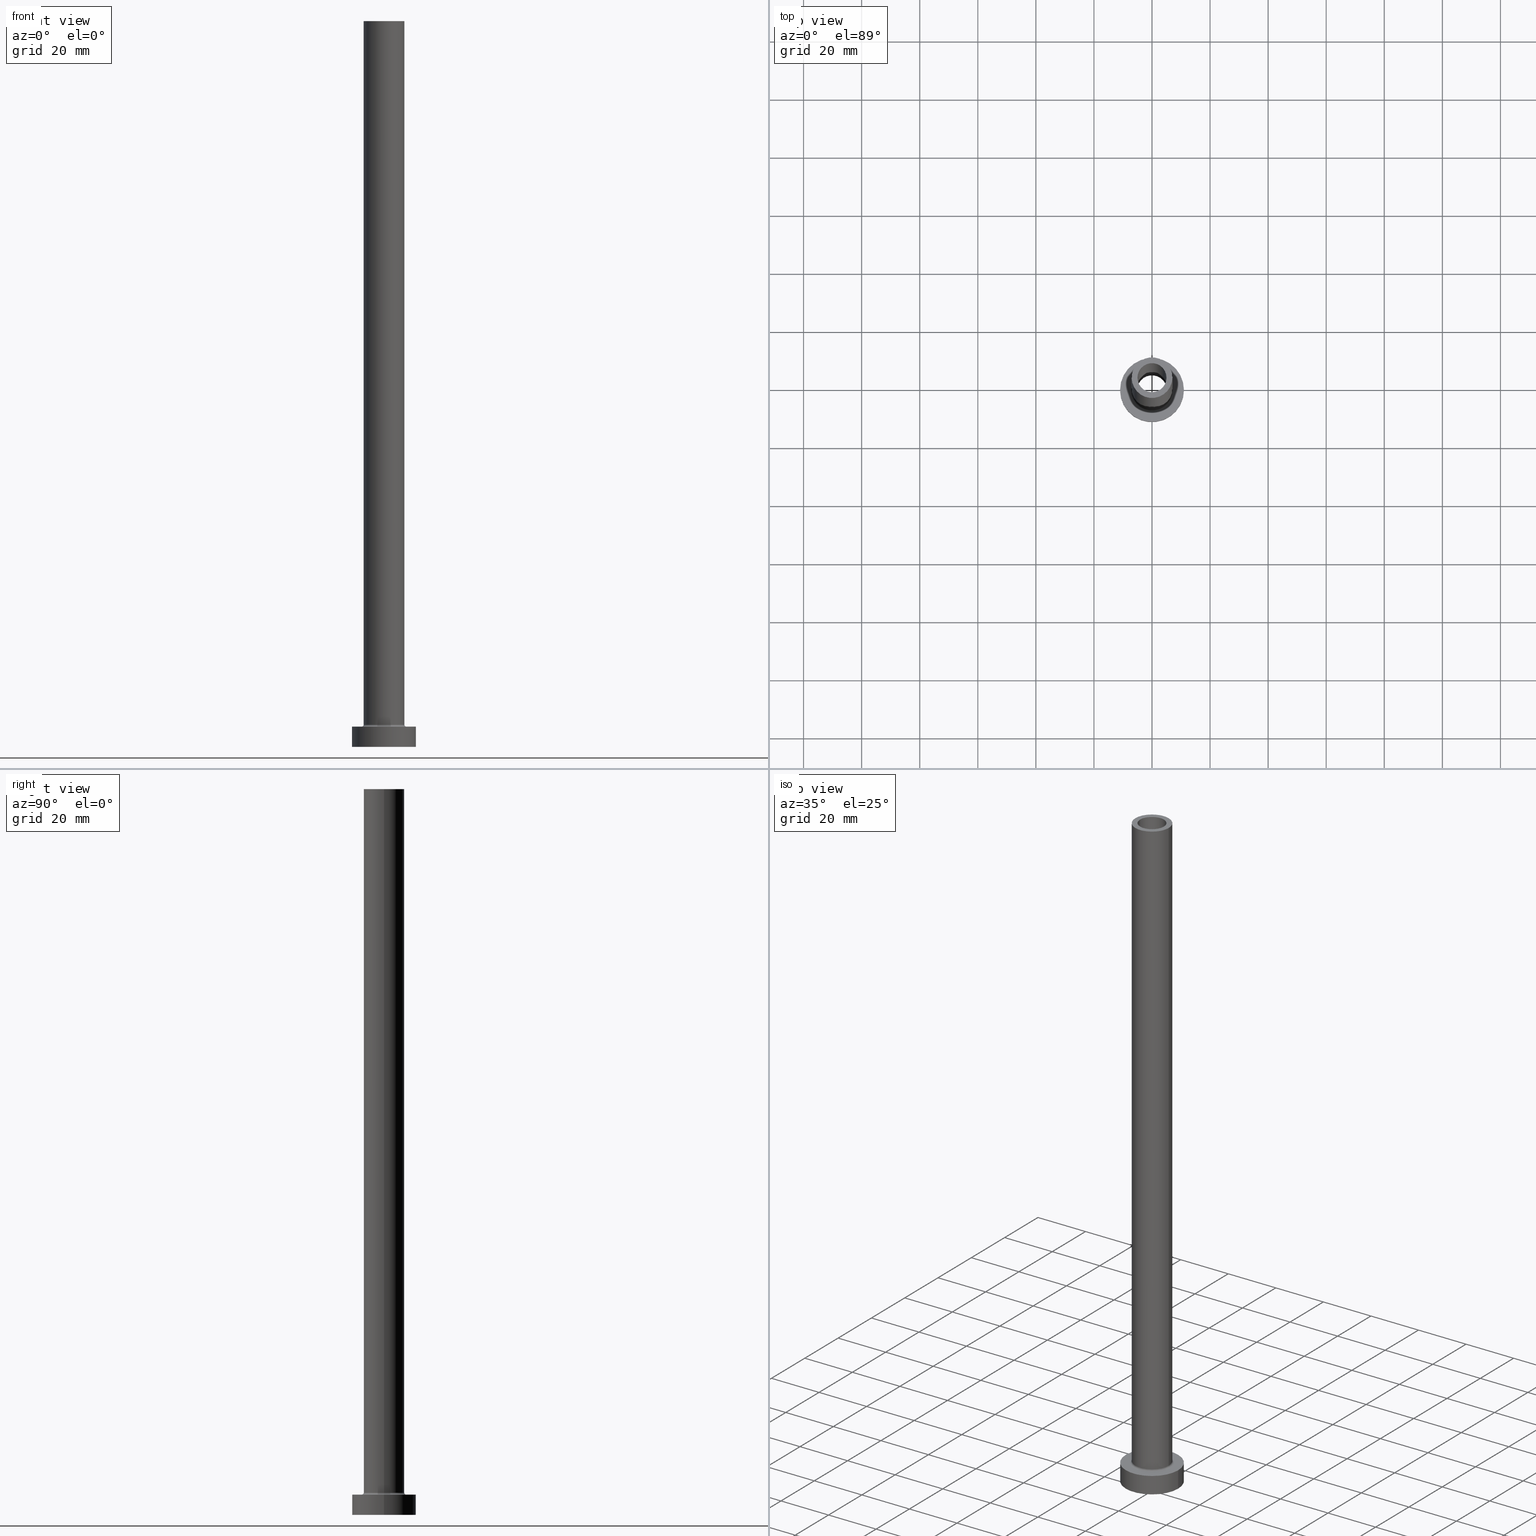
[diagram: canonical four-view strip — front | top / right | iso, engineering-drawing reading convention]
A machine part, canonical four-view strip (front | top / right | iso — engineering-drawing reading convention). The complete STEP part file that produces these views, byte-faithful:
ISO-10303-21;
HEADER;
FILE_DESCRIPTION (( 'STEP AP203' ),
    '1' );
FILE_NAME ('990e.STEP',
    '2023-02-13T07:43:22',
    ( '' ),
    ( '' ),
    'SwSTEP 2.0',
    'SolidWorks 2019',
    '' );
FILE_SCHEMA (( 'CONFIG_CONTROL_DESIGN' ));
ENDSEC;

DATA;
#1 = AXIS2_PLACEMENT_3D ( 'NONE', #248, #85, #370 ) ;
#2 = APPROVAL_DATE_TIME ( #71, #34 ) ;
#3 = DATE_TIME_ROLE ( 'creation_date' ) ;
#4 = ADVANCED_FACE ( 'NONE', ( #374 ), #129, .T. ) ;
#5 = CIRCLE ( 'NONE', #452, 5.150000000000001243 ) ;
#6 = ORIENTED_EDGE ( 'NONE', *, *, #339, .T. ) ;
#7 = CALENDAR_DATE ( 2023, 13, 2 ) ;
#8 = DIRECTION ( 'NONE',  ( 0.000000000000000000, 0.000000000000000000, -1.000000000000000000 ) ) ;
#9 = DIRECTION ( 'NONE',  ( 1.000000000000000000, 0.000000000000000000, 0.000000000000000000 ) ) ;
#10 = EDGE_LOOP ( 'NONE', ( #22, #79 ) ) ;
#11 = ADVANCED_FACE ( 'NONE', ( #300 ), #259, .F. ) ;
#12 = PERSON_AND_ORGANIZATION ( #36, #454 ) ;
#13 = DIRECTION ( 'NONE',  ( -0.000000000000000000, -0.000000000000000000, -1.000000000000000000 ) ) ;
#14 = VERTEX_POINT ( 'NONE', #95 ) ;
#15 = AXIS2_PLACEMENT_3D ( 'NONE', #57, #238, #377 ) ;
#16 = CALENDAR_DATE ( 2023, 13, 2 ) ;
#17 = DIRECTION ( 'NONE',  ( -1.000000000000000000, 0.000000000000000000, 0.000000000000000000 ) ) ;
#18 = DIRECTION ( 'NONE',  ( -0.000000000000000000, -0.000000000000000000, -1.000000000000000000 ) ) ;
#19 = ORIENTED_EDGE ( 'NONE', *, *, #342, .F. ) ;
#20 = DIRECTION ( 'NONE',  ( 0.000000000000000000, -1.000000000000000000, 0.000000000000000000 ) ) ;
#21 = CARTESIAN_POINT ( 'NONE',  ( 0.000000000000000000, 0.000000000000000000, 250.0000000000000000 ) ) ;
#22 = ORIENTED_EDGE ( 'NONE', *, *, #221, .F. ) ;
#23 = ORIENTED_EDGE ( 'NONE', *, *, #65, .T. ) ;
#24 = CARTESIAN_POINT ( 'NONE',  ( 0.000000000000000000, 0.000000000000000000, 7.700000000000012612 ) ) ;
#25 = CARTESIAN_POINT ( 'NONE',  ( -5.150000000000001243, 0.000000000000000000, 219.5663996924429000 ) ) ;
#26 = VERTEX_POINT ( 'NONE', #89 ) ;
#27 = ADVANCED_FACE ( 'NONE', ( #269, #368 ), #416, .T. ) ;
#28 = AXIS2_PLACEMENT_3D ( 'NONE', #143, #56, #17 ) ;
#29 = AXIS2_PLACEMENT_3D ( 'NONE', #234, #223, #273 ) ;
#30 = EDGE_CURVE ( 'NONE', #155, #153, #174, .T. ) ;
#31 = EDGE_LOOP ( 'NONE', ( #228, #169, #239, #417 ) ) ;
#32 = EDGE_CURVE ( 'NONE', #155, #26, #62, .T. ) ;
#33 = LOCAL_TIME ( 8, 43, 22.00000000000000000, #351 ) ;
#34 = APPROVAL ( #74, 'NEUR�EN�' ) ;
#35 = AXIS2_PLACEMENT_3D ( 'NONE', #126, #303, #60 ) ;
#36 = PERSON ( 'NEUR�EN�', 'NEUR�EN�', 'NEUR�EN�', ('NEUR�EN�'), ('NEUR�EN�'), ('NEUR�EN�') ) ;
#37 = COORDINATED_UNIVERSAL_TIME_OFFSET ( 1, 0, .AHEAD. ) ;
#38 = CARTESIAN_POINT ( 'NONE',  ( 0.000000000000000000, 0.000000000000000000, 205.0000000000000284 ) ) ;
#39 = APPROVAL_STATUS ( 'not_yet_approved' ) ;
#40 = EDGE_CURVE ( 'NONE', #153, #458, #455, .T. ) ;
#41 = DIRECTION ( 'NONE',  ( -1.000000000000000000, 0.000000000000000000, 0.000000000000000000 ) ) ;
#42 = ORIENTED_EDGE ( 'NONE', *, *, #272, .F. ) ;
#43 = PERSON_AND_ORGANIZATION ( #36, #454 ) ;
#44 = CIRCLE ( 'NONE', #308, 11.00000000000000000 ) ;
#45 = AXIS2_PLACEMENT_3D ( 'NONE', #292, #82, #398 ) ;
#46 = CARTESIAN_POINT ( 'NONE',  ( -5.000000000000000000, 0.000000000000000000, 250.0000000000000000 ) ) ;
#47 = DIRECTION ( 'NONE',  ( 1.000000000000000000, 0.000000000000000000, -0.000000000000000000 ) ) ;
#48 = EDGE_CURVE ( 'NONE', #458, #26, #5, .T. ) ;
#49 = DIRECTION ( 'NONE',  ( -0.000000000000000000, -0.000000000000000000, -1.000000000000000000 ) ) ;
#50 = DIRECTION ( 'NONE',  ( -1.000000000000000000, 1.224646799147351975E-16, 0.000000000000000000 ) ) ;
#51 = CARTESIAN_POINT ( 'NONE',  ( -5.000000000000000000, 0.000000000000000000, 250.0000000000000000 ) ) ;
#52 = DIRECTION ( 'NONE',  ( 1.000000000000000000, 0.000000000000000000, 0.000000000000000000 ) ) ;
#53 = DIRECTION ( 'NONE',  ( 0.000000000000000000, 0.000000000000000000, -1.000000000000000000 ) ) ;
#54 = ORIENTED_EDGE ( 'NONE', *, *, #383, .T. ) ;
#55 = APPROVAL_ROLE ( '' ) ;
#56 = DIRECTION ( 'NONE',  ( 0.000000000000000000, 0.000000000000000000, -1.000000000000000000 ) ) ;
#57 = CARTESIAN_POINT ( 'NONE',  ( 0.000000000000000000, 0.000000000000000000, 205.0000000000000284 ) ) ;
#58 = LINE ( 'NONE', #431, #104 ) ;
#59 = CARTESIAN_POINT ( 'NONE',  ( 5.000000000000000000, 6.123233995736765296E-16, 250.0000000000000000 ) ) ;
#60 = DIRECTION ( 'NONE',  ( 1.000000000000000000, 0.000000000000000000, 0.000000000000000000 ) ) ;
#61 = ORIENTED_EDGE ( 'NONE', *, *, #385, .T. ) ;
#62 = LINE ( 'NONE', #25, #131 ) ;
#63 = ADVANCED_FACE ( 'NONE', ( #345 ), #202, .F. ) ;
#64 = ORIENTED_EDGE ( 'NONE', *, *, #107, .T. ) ;
#65 = EDGE_CURVE ( 'NONE', #132, #92, #270, .T. ) ;
#66 = VERTEX_POINT ( 'NONE', #189 ) ;
#67 = AXIS2_PLACEMENT_3D ( 'NONE', #209, #257, #262 ) ;
#68 = EDGE_CURVE ( 'NONE', #226, #335, #277, .T. ) ;
#69 = VECTOR ( 'NONE', #268, 1000.000000000000000 ) ;
#70 = CIRCLE ( 'NONE', #139, 7.700000000000001066 ) ;
#71 = DATE_AND_TIME ( #423, #433 ) ;
#72 = APPROVAL_PERSON_ORGANIZATION ( #43, #319, #426 ) ;
#73 = AXIS2_PLACEMENT_3D ( 'NONE', #116, #252, #287 ) ;
#74 = APPROVAL_STATUS ( 'not_yet_approved' ) ;
#75 = DIRECTION ( 'NONE',  ( 0.000000000000000000, 0.000000000000000000, 1.000000000000000000 ) ) ;
#76 = FACE_OUTER_BOUND ( 'NONE', #10, .T. ) ;
#77 = PERSON_AND_ORGANIZATION_ROLE ( 'classification_officer' ) ;
#78 = PLANE ( 'NONE',  #67 ) ;
#79 = ORIENTED_EDGE ( 'NONE', *, *, #385, .F. ) ;
#80 = AXIS2_PLACEMENT_3D ( 'NONE', #387, #75, #205 ) ;
#81 = APPROVAL_PERSON_ORGANIZATION ( #12, #105, #55 ) ;
#82 = DIRECTION ( 'NONE',  ( 0.000000000000000000, 0.000000000000000000, 1.000000000000000000 ) ) ;
#83 =( LENGTH_UNIT ( ) NAMED_UNIT ( * ) SI_UNIT ( .MILLI., .METRE. ) );
#84 = CARTESIAN_POINT ( 'NONE',  ( 5.000000000000000000, 6.123233995736765296E-16, 250.0000000000000000 ) ) ;
#85 = DIRECTION ( 'NONE',  ( -0.000000000000000000, -0.000000000000000000, -1.000000000000000000 ) ) ;
#86 = DIRECTION ( 'NONE',  ( 1.224646799147353207E-16, 1.000000000000000000, -0.000000000000000000 ) ) ;
#87 = ORIENTED_EDGE ( 'NONE', *, *, #383, .F. ) ;
#88 =( NAMED_UNIT ( * ) SI_UNIT ( $, .STERADIAN. ) SOLID_ANGLE_UNIT ( ) );
#89 = CARTESIAN_POINT ( 'NONE',  ( -5.150000000000001243, 0.000000000000000000, 0.000000000000000000 ) ) ;
#90 = ORIENTED_EDGE ( 'NONE', *, *, #309, .T. ) ;
#91 = LINE ( 'NONE', #46, #384 ) ;
#92 = VERTEX_POINT ( 'NONE', #261 ) ;
#93 = DIRECTION ( 'NONE',  ( -1.000000000000000000, 0.000000000000000000, 0.000000000000000000 ) ) ;
#94 = CYLINDRICAL_SURFACE ( 'NONE', #28, 5.000000000000000000 ) ;
#95 = CARTESIAN_POINT ( 'NONE',  ( -5.000000000000000000, 0.000000000000000000, 205.0000000000000284 ) ) ;
#96 = ORIENTED_EDGE ( 'NONE', *, *, #185, .T. ) ;
#97 = AXIS2_PLACEMENT_3D ( 'NONE', #393, #328, #9 ) ;
#98 = ADVANCED_FACE ( 'NONE', ( #286 ), #330, .T. ) ;
#99 = ORIENTED_EDGE ( 'NONE', *, *, #221, .T. ) ;
#100 = EDGE_LOOP ( 'NONE', ( #334, #101, #233, #275 ) ) ;
#101 = ORIENTED_EDGE ( 'NONE', *, *, #65, .F. ) ;
#102 = CC_DESIGN_APPROVAL ( #34, ( #310 ) ) ;
#103 = ADVANCED_BREP_SHAPE_REPRESENTATION ( '990e', ( #325, #29 ), #413 ) ;
#104 = VECTOR ( 'NONE', #266, 1000.000000000000000 ) ;
#105 = APPROVAL ( #258, 'NEUR�EN�' ) ;
#106 = VECTOR ( 'NONE', #125, 1000.000000000000000 ) ;
#107 = EDGE_CURVE ( 'NONE', #236, #335, #242, .T. ) ;
#108 = APPROVAL_PERSON_ORGANIZATION ( #281, #34, #113 ) ;
#109 = DIRECTION ( 'NONE',  ( 0.000000000000000000, 0.000000000000000000, 1.000000000000000000 ) ) ;
#110 = CC_DESIGN_PERSON_AND_ORGANIZATION_ASSIGNMENT ( #366, #399, ( #199 ) ) ;
#111 = AXIS2_PLACEMENT_3D ( 'NONE', #436, #291, #396 ) ;
#112 = FACE_OUTER_BOUND ( 'NONE', #444, .T. ) ;
#113 = APPROVAL_ROLE ( '' ) ;
#114 = CARTESIAN_POINT ( 'NONE',  ( -11.00000000000000000, 0.000000000000000000, 7.000000000000000000 ) ) ;
#115 = DIRECTION ( 'NONE',  ( 0.000000000000000000, 0.000000000000000000, -1.000000000000000000 ) ) ;
#116 = CARTESIAN_POINT ( 'NONE',  ( 0.000000000000000000, 0.000000000000000000, 0.000000000000000000 ) ) ;
#117 = CARTESIAN_POINT ( 'NONE',  ( 11.00000000000000000, 1.347111479062088405E-15, 0.000000000000000000 ) ) ;
#118 = AXIS2_PLACEMENT_3D ( 'NONE', #298, #442, #122 ) ;
#119 = DIRECTION ( 'NONE',  ( 0.000000000000000000, 0.000000000000000000, -1.000000000000000000 ) ) ;
#120 = ORIENTED_EDGE ( 'NONE', *, *, #305, .F. ) ;
#121 = FACE_OUTER_BOUND ( 'NONE', #31, .T. ) ;
#122 = DIRECTION ( 'NONE',  ( -1.000000000000000000, 0.000000000000000000, 0.000000000000000000 ) ) ;
#123 = ORIENTED_EDGE ( 'NONE', *, *, #430, .F. ) ;
#124 = DIRECTION ( 'NONE',  ( 1.000000000000000000, 0.000000000000000000, 0.000000000000000000 ) ) ;
#125 = DIRECTION ( 'NONE',  ( -0.000000000000000000, -0.000000000000000000, -1.000000000000000000 ) ) ;
#126 = CARTESIAN_POINT ( 'NONE',  ( 0.000000000000000000, 0.000000000000000000, 7.700000000000012612 ) ) ;
#127 = EDGE_CURVE ( 'NONE', #92, #226, #212, .T. ) ;
#128 = CARTESIAN_POINT ( 'NONE',  ( 0.000000000000000000, 0.000000000000000000, 7.000000000000000000 ) ) ;
#129 = CYLINDRICAL_SURFACE ( 'NONE', #118, 7.000000000000000888 ) ;
#130 = AXIS2_PLACEMENT_3D ( 'NONE', #21, #193, #306 ) ;
#131 = VECTOR ( 'NONE', #307, 1000.000000000000000 ) ;
#132 = VERTEX_POINT ( 'NONE', #359 ) ;
#133 = AXIS2_PLACEMENT_3D ( 'NONE', #24, #152, #409 ) ;
#134 = DIRECTION ( 'NONE',  ( 0.000000000000000000, 0.000000000000000000, -1.000000000000000000 ) ) ;
#135 = ORIENTED_EDGE ( 'NONE', *, *, #314, .T. ) ;
#136 = ADVANCED_FACE ( 'NONE', ( #294 ), #419, .F. ) ;
#137 = ORIENTED_EDGE ( 'NONE', *, *, #127, .T. ) ;
#138 = CC_DESIGN_APPROVAL ( #319, ( #229 ) ) ;
#139 = AXIS2_PLACEMENT_3D ( 'NONE', #128, #222, #52 ) ;
#140 = EDGE_CURVE ( 'NONE', #335, #236, #70, .T. ) ;
#141 = EDGE_CURVE ( 'NONE', #162, #260, #58, .T. ) ;
#142 = AXIS2_PLACEMENT_3D ( 'NONE', #352, #318, #216 ) ;
#143 = CARTESIAN_POINT ( 'NONE',  ( 0.000000000000000000, 0.000000000000000000, 250.0000000000000000 ) ) ;
#144 = CC_DESIGN_PERSON_AND_ORGANIZATION_ASSIGNMENT ( #207, #391, ( #278 ) ) ;
#145 = PERSON_AND_ORGANIZATION_ROLE ( 'creator' ) ;
#146 = CIRCLE ( 'NONE', #217, 5.000000000000000000 ) ;
#147 = CIRCLE ( 'NONE', #73, 5.150000000000001243 ) ;
#148 = FACE_OUTER_BOUND ( 'NONE', #265, .T. ) ;
#149 = DATE_AND_TIME ( #356, #418 ) ;
#150 = CARTESIAN_POINT ( 'NONE',  ( 7.700000000000001066, 0.000000000000000000, 7.700000000000012612 ) ) ;
#151 = CARTESIAN_POINT ( 'NONE',  ( 0.000000000000000000, 0.000000000000000000, 219.5663996924429000 ) ) ;
#152 = DIRECTION ( 'NONE',  ( 0.000000000000000000, 0.000000000000000000, 1.000000000000000000 ) ) ;
#153 = VERTEX_POINT ( 'NONE', #290 ) ;
#154 = VECTOR ( 'NONE', #49, 1000.000000000000000 ) ;
#155 = VERTEX_POINT ( 'NONE', #427 ) ;
#156 = CARTESIAN_POINT ( 'NONE',  ( 0.000000000000000000, 0.000000000000000000, 7.000000000000000000 ) ) ;
#157 = ORIENTED_EDGE ( 'NONE', *, *, #339, .F. ) ;
#158 = DIRECTION ( 'NONE',  ( -0.000000000000000000, -0.000000000000000000, -1.000000000000000000 ) ) ;
#159 = CARTESIAN_POINT ( 'NONE',  ( 0.000000000000000000, 0.000000000000000000, 7.000000000000000000 ) ) ;
#160 = PRODUCT_RELATED_PRODUCT_CATEGORY ( 'detail', '', ( #199 ) ) ;
#161 = EDGE_LOOP ( 'NONE', ( #412, #135 ) ) ;
#162 = VERTEX_POINT ( 'NONE', #114 ) ;
#163 = CARTESIAN_POINT ( 'NONE',  ( -7.000000000000000888, 0.000000000000000000, 250.0000000000000000 ) ) ;
#164 = DIRECTION ( 'NONE',  ( 1.000000000000000000, 0.000000000000000000, -0.000000000000000000 ) ) ;
#165 = VECTOR ( 'NONE', #134, 1000.000000000000000 ) ;
#166 = EDGE_LOOP ( 'NONE', ( #246, #348, #195, #378 ) ) ;
#167 = AXIS2_PLACEMENT_3D ( 'NONE', #156, #341, #371 ) ;
#168 = DIRECTION ( 'NONE',  ( 0.000000000000000000, 0.000000000000000000, 1.000000000000000000 ) ) ;
#169 = ORIENTED_EDGE ( 'NONE', *, *, #421, .T. ) ;
#170 = ADVANCED_FACE ( 'NONE', ( #181 ), #333, .T. ) ;
#171 = APPROVAL_DATE_TIME ( #386, #319 ) ;
#172 = CARTESIAN_POINT ( 'NONE',  ( -7.700000000000001066, 9.429780353434621002E-16, 7.000000000000006217 ) ) ;
#173 = EDGE_LOOP ( 'NONE', ( #157, #137, #451, #375 ) ) ;
#174 = CIRCLE ( 'NONE', #15, 5.150000000000001243 ) ;
#175 = COORDINATED_UNIVERSAL_TIME_OFFSET ( 1, 0, .AHEAD. ) ;
#176 = EDGE_CURVE ( 'NONE', #312, #14, #91, .T. ) ;
#177 = DIRECTION ( 'NONE',  ( 0.000000000000000000, 0.000000000000000000, 1.000000000000000000 ) ) ;
#178 = CYLINDRICAL_SURFACE ( 'NONE', #321, 11.00000000000000000 ) ;
#179 = CARTESIAN_POINT ( 'NONE',  ( 0.000000000000000000, 0.000000000000000000, 205.0000000000000284 ) ) ;
#180 = FACE_OUTER_BOUND ( 'NONE', #332, .T. ) ;
#181 = FACE_OUTER_BOUND ( 'NONE', #198, .T. ) ;
#182 = LINE ( 'NONE', #84, #324 ) ;
#183 = EDGE_LOOP ( 'NONE', ( #457, #87, #340, #99 ) ) ;
#184 = CC_DESIGN_SECURITY_CLASSIFICATION ( #229, ( #310 ) ) ;
#185 = EDGE_CURVE ( 'NONE', #26, #458, #147, .T. ) ;
#186 = LINE ( 'NONE', #446, #106 ) ;
#187 = DIRECTION ( 'NONE',  ( 0.000000000000000000, 0.000000000000000000, -1.000000000000000000 ) ) ;
#188 = AXIS2_PLACEMENT_3D ( 'NONE', #392, #158, #449 ) ;
#189 = CARTESIAN_POINT ( 'NONE',  ( -7.000000000000000888, 0.000000000000000000, 7.700000000000012612 ) ) ;
#190 = CC_DESIGN_DATE_AND_TIME_ASSIGNMENT ( #149, #289, ( #229 ) ) ;
#191 = FACE_BOUND ( 'NONE', #311, .T. ) ;
#192 = VERTEX_POINT ( 'NONE', #117 ) ;
#193 = DIRECTION ( 'NONE',  ( 0.000000000000000000, 0.000000000000000000, 1.000000000000000000 ) ) ;
#194 = CARTESIAN_POINT ( 'NONE',  ( 0.000000000000000000, 0.000000000000000000, 250.0000000000000000 ) ) ;
#195 = ORIENTED_EDGE ( 'NONE', *, *, #48, .T. ) ;
#196 = CARTESIAN_POINT ( 'NONE',  ( 0.000000000000000000, 0.000000000000000000, 250.0000000000000000 ) ) ;
#197 = CIRCLE ( 'NONE', #45, 11.00000000000000000 ) ;
#198 = EDGE_LOOP ( 'NONE', ( #19, #397, #61, #450 ) ) ;
#199 = PRODUCT ( '990e', '990e', '', ( #439 ) ) ;
#200 = ADVANCED_FACE ( 'NONE', ( #402, #76 ), #78, .F. ) ;
#201 = CIRCLE ( 'NONE', #133, 7.000000000000000888 ) ;
#202 = TOROIDAL_SURFACE ( 'NONE', #35, 7.700000000000001066, 0.6999999999999999556 ) ;
#203 = ADVANCED_FACE ( 'NONE', ( #249 ), #283, .F. ) ;
#204 = SHAPE_DEFINITION_REPRESENTATION ( #382, #103 ) ;
#205 = DIRECTION ( 'NONE',  ( 1.000000000000000000, 0.000000000000000000, 0.000000000000000000 ) ) ;
#206 = AXIS2_PLACEMENT_3D ( 'NONE', #407, #435, #360 ) ;
#207 = PERSON_AND_ORGANIZATION ( #36, #454 ) ;
#208 = PERSON_AND_ORGANIZATION ( #36, #454 ) ;
#209 = CARTESIAN_POINT ( 'NONE',  ( 0.000000000000000000, 0.000000000000000000, 0.000000000000000000 ) ) ;
#210 = EDGE_CURVE ( 'NONE', #66, #236, #372, .T. ) ;
#211 = CALENDAR_DATE ( 2023, 13, 2 ) ;
#212 = LINE ( 'NONE', #363, #154 ) ;
#213 = CYLINDRICAL_SURFACE ( 'NONE', #240, 5.150000000000001243 ) ;
#214 = ADVANCED_FACE ( 'NONE', ( #112 ), #213, .F. ) ;
#215 = CIRCLE ( 'NONE', #323, 7.000000000000000888 ) ;
#216 = DIRECTION ( 'NONE',  ( 1.000000000000000000, 0.000000000000000000, 0.000000000000000000 ) ) ;
#217 = AXIS2_PLACEMENT_3D ( 'NONE', #453, #264, #124 ) ;
#218 = CARTESIAN_POINT ( 'NONE',  ( -11.00000000000000000, 0.000000000000000000, 0.000000000000000000 ) ) ;
#219 = FACE_OUTER_BOUND ( 'NONE', #183, .T. ) ;
#220 = DIRECTION ( 'NONE',  ( 0.000000000000000000, 0.000000000000000000, -1.000000000000000000 ) ) ;
#221 = EDGE_CURVE ( 'NONE', #260, #192, #297, .T. ) ;
#222 = DIRECTION ( 'NONE',  ( -0.000000000000000000, -0.000000000000000000, -1.000000000000000000 ) ) ;
#223 = DIRECTION ( 'NONE',  ( 0.000000000000000000, 0.000000000000000000, 1.000000000000000000 ) ) ;
#224 = CARTESIAN_POINT ( 'NONE',  ( 0.000000000000000000, 0.000000000000000000, 250.0000000000000000 ) ) ;
#225 = ORIENTED_EDGE ( 'NONE', *, *, #140, .F. ) ;
#226 = VERTEX_POINT ( 'NONE', #357 ) ;
#227 = CARTESIAN_POINT ( 'NONE',  ( 0.000000000000000000, 0.000000000000000000, 7.000000000000000000 ) ) ;
#228 = ORIENTED_EDGE ( 'NONE', *, *, #309, .F. ) ;
#229 = SECURITY_CLASSIFICATION ( '', '', #320 ) ;
#230 = PLANE ( 'NONE',  #167 ) ;
#231 = ORIENTED_EDGE ( 'NONE', *, *, #140, .T. ) ;
#232 = AXIS2_PLACEMENT_3D ( 'NONE', #196, #168, #164 ) ;
#233 = ORIENTED_EDGE ( 'NONE', *, *, #420, .T. ) ;
#234 = CARTESIAN_POINT ( 'NONE',  ( 0.000000000000000000, 0.000000000000000000, 0.000000000000000000 ) ) ;
#235 = DIRECTION ( 'NONE',  ( -1.000000000000000000, 0.000000000000000000, 0.000000000000000000 ) ) ;
#236 = VERTEX_POINT ( 'NONE', #172 ) ;
#237 = APPLICATION_CONTEXT ( 'configuration controlled 3d designs of mechanical parts and assemblies' ) ;
#238 = DIRECTION ( 'NONE',  ( 0.000000000000000000, 0.000000000000000000, 1.000000000000000000 ) ) ;
#239 = ORIENTED_EDGE ( 'NONE', *, *, #176, .T. ) ;
#240 = AXIS2_PLACEMENT_3D ( 'NONE', #361, #115, #41 ) ;
#241 = CC_DESIGN_PERSON_AND_ORGANIZATION_ASSIGNMENT ( #282, #390, ( #310 ) ) ;
#242 = CIRCLE ( 'NONE', #188, 7.700000000000001066 ) ;
#243 = LOCAL_TIME ( 8, 43, 22.00000000000000000, #175 ) ;
#244 = CIRCLE ( 'NONE', #97, 5.000000000000000000 ) ;
#245 = DIRECTION ( 'NONE',  ( 0.000000000000000000, 0.000000000000000000, 1.000000000000000000 ) ) ;
#246 = ORIENTED_EDGE ( 'NONE', *, *, #30, .T. ) ;
#247 = ADVANCED_FACE ( 'NONE', ( #322, #148 ), #432, .F. ) ;
#248 = CARTESIAN_POINT ( 'NONE',  ( 0.000000000000000000, 0.000000000000000000, 250.0000000000000000 ) ) ;
#249 = FACE_OUTER_BOUND ( 'NONE', #166, .T. ) ;
#250 = ORIENTED_EDGE ( 'NONE', *, *, #210, .T. ) ;
#251 = APPLICATION_CONTEXT ( 'configuration controlled 3d designs of mechanical parts and assemblies' ) ;
#252 = DIRECTION ( 'NONE',  ( -0.000000000000000000, -0.000000000000000000, -1.000000000000000000 ) ) ;
#253 = DIRECTION ( 'NONE',  ( 1.000000000000000000, 0.000000000000000000, 0.000000000000000000 ) ) ;
#254 = ORIENTED_EDGE ( 'NONE', *, *, #48, .F. ) ;
#255 = AXIS2_PLACEMENT_3D ( 'NONE', #150, #20, #119 ) ;
#256 = DIRECTION ( 'NONE',  ( 0.000000000000000000, 0.000000000000000000, 1.000000000000000000 ) ) ;
#257 = DIRECTION ( 'NONE',  ( 0.000000000000000000, 0.000000000000000000, 1.000000000000000000 ) ) ;
#258 = APPROVAL_STATUS ( 'not_yet_approved' ) ;
#259 = CYLINDRICAL_SURFACE ( 'NONE', #424, 5.000000000000000000 ) ;
#260 = VERTEX_POINT ( 'NONE', #218 ) ;
#261 = CARTESIAN_POINT ( 'NONE',  ( 7.000000000000000888, 8.572527594031474176E-16, 250.0000000000000000 ) ) ;
#262 = DIRECTION ( 'NONE',  ( 1.000000000000000000, 0.000000000000000000, -0.000000000000000000 ) ) ;
#263 = VERTEX_POINT ( 'NONE', #364 ) ;
#264 = DIRECTION ( 'NONE',  ( 0.000000000000000000, 0.000000000000000000, 1.000000000000000000 ) ) ;
#265 = EDGE_LOOP ( 'NONE', ( #410, #120 ) ) ;
#266 = DIRECTION ( 'NONE',  ( -0.000000000000000000, -0.000000000000000000, -1.000000000000000000 ) ) ;
#267 = CIRCLE ( 'NONE', #130, 5.000000000000000000 ) ;
#268 = DIRECTION ( 'NONE',  ( -0.000000000000000000, -0.000000000000000000, -1.000000000000000000 ) ) ;
#269 = FACE_BOUND ( 'NONE', #408, .T. ) ;
#270 = CIRCLE ( 'NONE', #317, 7.000000000000000888 ) ;
#271 = VERTEX_POINT ( 'NONE', #428 ) ;
#272 = EDGE_CURVE ( 'NONE', #14, #271, #244, .T. ) ;
#273 = DIRECTION ( 'NONE',  ( 1.000000000000000000, 0.000000000000000000, 0.000000000000000000 ) ) ;
#274 = CARTESIAN_POINT ( 'NONE',  ( 0.000000000000000000, 0.000000000000000000, 0.000000000000000000 ) ) ;
#275 = ORIENTED_EDGE ( 'NONE', *, *, #430, .T. ) ;
#276 = UNCERTAINTY_MEASURE_WITH_UNIT (LENGTH_MEASURE( 1.000000000000000082E-05 ), #83, 'distance_accuracy_value', 'NONE');
#277 = CIRCLE ( 'NONE', #255, 0.7000000000000000666 ) ;
#278 = PRODUCT_DEFINITION ( 'NEZN�M�', '', #310, #459 ) ;
#279 = CIRCLE ( 'NONE', #80, 7.000000000000000888 ) ;
#280 = LOCAL_TIME ( 8, 43, 22.00000000000000000, #403 ) ;
#281 = PERSON_AND_ORGANIZATION ( #36, #454 ) ;
#282 = PERSON_AND_ORGANIZATION ( #36, #454 ) ;
#283 = CYLINDRICAL_SURFACE ( 'NONE', #460, 5.150000000000001243 ) ;
#284 = CIRCLE ( 'NONE', #349, 5.000000000000000000 ) ;
#285 = APPROVAL_DATE_TIME ( #445, #105 ) ;
#286 = FACE_OUTER_BOUND ( 'NONE', #100, .T. ) ;
#287 = DIRECTION ( 'NONE',  ( 1.000000000000000000, 0.000000000000000000, 0.000000000000000000 ) ) ;
#288 = ORIENTED_EDGE ( 'NONE', *, *, #68, .F. ) ;
#289 = DATE_TIME_ROLE ( 'classification_date' ) ;
#290 = CARTESIAN_POINT ( 'NONE',  ( 5.150000000000001243, 6.306931015608869596E-16, 205.0000000000000284 ) ) ;
#291 = DIRECTION ( 'NONE',  ( 0.000000000000000000, 0.000000000000000000, 1.000000000000000000 ) ) ;
#292 = CARTESIAN_POINT ( 'NONE',  ( 0.000000000000000000, 0.000000000000000000, 0.000000000000000000 ) ) ;
#293 = APPLICATION_PROTOCOL_DEFINITION ( 'international standard', 'config_control_design', 1994, #237 ) ;
#294 = FACE_OUTER_BOUND ( 'NONE', #415, .T. ) ;
#295 = CARTESIAN_POINT ( 'NONE',  ( 0.000000000000000000, 0.000000000000000000, 0.000000000000000000 ) ) ;
#296 = ORIENTED_EDGE ( 'NONE', *, *, #405, .T. ) ;
#297 = CIRCLE ( 'NONE', #353, 11.00000000000000000 ) ;
#298 = CARTESIAN_POINT ( 'NONE',  ( 0.000000000000000000, 0.000000000000000000, 250.0000000000000000 ) ) ;
#299 = ORIENTED_EDGE ( 'NONE', *, *, #354, .F. ) ;
#300 = FACE_OUTER_BOUND ( 'NONE', #437, .T. ) ;
#301 = EDGE_LOOP ( 'NONE', ( #23, #6 ) ) ;
#302 =( NAMED_UNIT ( * ) PLANE_ANGLE_UNIT ( ) SI_UNIT ( $, .RADIAN. ) );
#303 = DIRECTION ( 'NONE',  ( 0.000000000000000000, 0.000000000000000000, 1.000000000000000000 ) ) ;
#304 = ORIENTED_EDGE ( 'NONE', *, *, #342, .T. ) ;
#305 = EDGE_CURVE ( 'NONE', #153, #155, #315, .T. ) ;
#306 = DIRECTION ( 'NONE',  ( 1.000000000000000000, 0.000000000000000000, 0.000000000000000000 ) ) ;
#307 = DIRECTION ( 'NONE',  ( 0.000000000000000000, 0.000000000000000000, -1.000000000000000000 ) ) ;
#308 = AXIS2_PLACEMENT_3D ( 'NONE', #373, #109, #367 ) ;
#309 = EDGE_CURVE ( 'NONE', #448, #271, #182, .T. ) ;
#310 = PRODUCT_DEFINITION_FORMATION_WITH_SPECIFIED_SOURCE ( 'LIBOVOLN�', '', #199, .NOT_KNOWN. ) ;
#311 = EDGE_LOOP ( 'NONE', ( #231, #64 ) ) ;
#312 = VERTEX_POINT ( 'NONE', #51 ) ;
#313 = ORIENTED_EDGE ( 'NONE', *, *, #40, .F. ) ;
#314 = EDGE_CURVE ( 'NONE', #271, #14, #284, .T. ) ;
#315 = CIRCLE ( 'NONE', #111, 5.150000000000001243 ) ;
#316 = ADVANCED_FACE ( 'NONE', ( #121 ), #94, .F. ) ;
#317 = AXIS2_PLACEMENT_3D ( 'NONE', #447, #336, #401 ) ;
#318 = DIRECTION ( 'NONE',  ( 0.000000000000000000, 0.000000000000000000, 1.000000000000000000 ) ) ;
#319 = APPROVAL ( #39, 'NEUR�EN�' ) ;
#320 = SECURITY_CLASSIFICATION_LEVEL ( 'unclassified' ) ;
#321 = AXIS2_PLACEMENT_3D ( 'NONE', #159, #376, #93 ) ;
#322 = FACE_BOUND ( 'NONE', #161, .T. ) ;
#323 = AXIS2_PLACEMENT_3D ( 'NONE', #224, #400, #434 ) ;
#324 = VECTOR ( 'NONE', #220, 1000.000000000000000 ) ;
#325 = MANIFOLD_SOLID_BREP ( 'Odebrat vysunut�m4', #422 ) ;
#326 = DATE_AND_TIME ( #211, #243 ) ;
#327 = DIRECTION ( 'NONE',  ( -1.000000000000000000, 0.000000000000000000, 0.000000000000000000 ) ) ;
#328 = DIRECTION ( 'NONE',  ( 0.000000000000000000, 0.000000000000000000, 1.000000000000000000 ) ) ;
#329 = CARTESIAN_POINT ( 'NONE',  ( 7.700000000000001066, 0.000000000000000000, 7.000000000000006217 ) ) ;
#330 = CYLINDRICAL_SURFACE ( 'NONE', #1, 7.000000000000000888 ) ;
#331 = DIRECTION ( 'NONE',  ( -1.000000000000000000, 0.000000000000000000, 0.000000000000000000 ) ) ;
#332 = EDGE_LOOP ( 'NONE', ( #54, #304 ) ) ;
#333 = CYLINDRICAL_SURFACE ( 'NONE', #438, 11.00000000000000000 ) ;
#334 = ORIENTED_EDGE ( 'NONE', *, *, #127, .F. ) ;
#335 = VERTEX_POINT ( 'NONE', #329 ) ;
#336 = DIRECTION ( 'NONE',  ( 0.000000000000000000, 0.000000000000000000, 1.000000000000000000 ) ) ;
#337 = CARTESIAN_POINT ( 'NONE',  ( 5.150000000000001243, 6.306931015608869596E-16, 0.000000000000000000 ) ) ;
#338 = CARTESIAN_POINT ( 'NONE',  ( 5.150000000000001243, 6.306931015608869596E-16, 219.5663996924429000 ) ) ;
#339 = EDGE_CURVE ( 'NONE', #92, #132, #215, .T. ) ;
#340 = ORIENTED_EDGE ( 'NONE', *, *, #141, .T. ) ;
#341 = DIRECTION ( 'NONE',  ( 0.000000000000000000, 0.000000000000000000, 1.000000000000000000 ) ) ;
#342 = EDGE_CURVE ( 'NONE', #263, #162, #44, .T. ) ;
#343 = EDGE_LOOP ( 'NONE', ( #123, #250, #225, #288 ) ) ;
#344 = ORIENTED_EDGE ( 'NONE', *, *, #421, .F. ) ;
#345 = FACE_OUTER_BOUND ( 'NONE', #343, .T. ) ;
#346 = CIRCLE ( 'NONE', #142, 11.00000000000000000 ) ;
#347 = CC_DESIGN_APPROVAL ( #105, ( #278 ) ) ;
#348 = ORIENTED_EDGE ( 'NONE', *, *, #40, .T. ) ;
#349 = AXIS2_PLACEMENT_3D ( 'NONE', #38, #256, #440 ) ;
#350 = EDGE_CURVE ( 'NONE', #263, #192, #186, .T. ) ;
#351 = COORDINATED_UNIVERSAL_TIME_OFFSET ( 1, 0, .AHEAD. ) ;
#352 = CARTESIAN_POINT ( 'NONE',  ( 0.000000000000000000, 0.000000000000000000, 7.000000000000000000 ) ) ;
#353 = AXIS2_PLACEMENT_3D ( 'NONE', #295, #245, #253 ) ;
#354 = EDGE_CURVE ( 'NONE', #226, #66, #279, .T. ) ;
#355 = COORDINATED_UNIVERSAL_TIME_OFFSET ( 1, 0, .AHEAD. ) ;
#356 = CALENDAR_DATE ( 2023, 13, 2 ) ;
#357 = CARTESIAN_POINT ( 'NONE',  ( 7.000000000000000888, 8.572527594031474176E-16, 7.700000000000012612 ) ) ;
#358 = PERSON_AND_ORGANIZATION ( #36, #454 ) ;
#359 = CARTESIAN_POINT ( 'NONE',  ( -7.000000000000000888, 0.000000000000000000, 250.0000000000000000 ) ) ;
#360 = DIRECTION ( 'NONE',  ( 1.000000000000000000, 0.000000000000000000, 0.000000000000000000 ) ) ;
#361 = CARTESIAN_POINT ( 'NONE',  ( 0.000000000000000000, 0.000000000000000000, 219.5663996924429000 ) ) ;
#362 = APPLICATION_PROTOCOL_DEFINITION ( 'international standard', 'config_control_design', 1994, #251 ) ;
#363 = CARTESIAN_POINT ( 'NONE',  ( 7.000000000000000888, 8.572527594031474176E-16, 250.0000000000000000 ) ) ;
#364 = CARTESIAN_POINT ( 'NONE',  ( 11.00000000000000000, 1.347111479062088405E-15, 7.000000000000000000 ) ) ;
#365 = ORIENTED_EDGE ( 'NONE', *, *, #405, .F. ) ;
#366 = PERSON_AND_ORGANIZATION ( #36, #454 ) ;
#367 = DIRECTION ( 'NONE',  ( 1.000000000000000000, 0.000000000000000000, 0.000000000000000000 ) ) ;
#368 = FACE_OUTER_BOUND ( 'NONE', #301, .T. ) ;
#369 = ORIENTED_EDGE ( 'NONE', *, *, #176, .F. ) ;
#370 = DIRECTION ( 'NONE',  ( -1.000000000000000000, 0.000000000000000000, 0.000000000000000000 ) ) ;
#371 = DIRECTION ( 'NONE',  ( 1.000000000000000000, 0.000000000000000000, -0.000000000000000000 ) ) ;
#372 = CIRCLE ( 'NONE', #381, 0.7000000000000000666 ) ;
#373 = CARTESIAN_POINT ( 'NONE',  ( 0.000000000000000000, 0.000000000000000000, 7.000000000000000000 ) ) ;
#374 = FACE_OUTER_BOUND ( 'NONE', #173, .T. ) ;
#375 = ORIENTED_EDGE ( 'NONE', *, *, #420, .F. ) ;
#376 = DIRECTION ( 'NONE',  ( -0.000000000000000000, -0.000000000000000000, -1.000000000000000000 ) ) ;
#377 = DIRECTION ( 'NONE',  ( 1.000000000000000000, 0.000000000000000000, 0.000000000000000000 ) ) ;
#378 = ORIENTED_EDGE ( 'NONE', *, *, #32, .F. ) ;
#379 = DIRECTION ( 'NONE',  ( 1.000000000000000000, 0.000000000000000000, 0.000000000000000000 ) ) ;
#380 = ORIENTED_EDGE ( 'NONE', *, *, #305, .T. ) ;
#381 = AXIS2_PLACEMENT_3D ( 'NONE', #425, #86, #50 ) ;
#382 = PRODUCT_DEFINITION_SHAPE ( 'NONE', 'NONE',  #278 ) ;
#383 = EDGE_CURVE ( 'NONE', #162, #263, #346, .T. ) ;
#384 = VECTOR ( 'NONE', #8, 1000.000000000000000 ) ;
#385 = EDGE_CURVE ( 'NONE', #192, #260, #197, .T. ) ;
#386 = DATE_AND_TIME ( #7, #33 ) ;
#387 = CARTESIAN_POINT ( 'NONE',  ( 0.000000000000000000, 0.000000000000000000, 7.700000000000012612 ) ) ;
#388 = CC_DESIGN_DATE_AND_TIME_ASSIGNMENT ( #326, #3, ( #278 ) ) ;
#389 = AXIS2_PLACEMENT_3D ( 'NONE', #179, #177, #47 ) ;
#390 = PERSON_AND_ORGANIZATION_ROLE ( 'design_supplier' ) ;
#391 = PERSON_AND_ORGANIZATION_ROLE ( 'creator' ) ;
#392 = CARTESIAN_POINT ( 'NONE',  ( 0.000000000000000000, 0.000000000000000000, 7.000000000000000000 ) ) ;
#393 = CARTESIAN_POINT ( 'NONE',  ( 0.000000000000000000, 0.000000000000000000, 205.0000000000000284 ) ) ;
#394 = ORIENTED_EDGE ( 'NONE', *, *, #107, .F. ) ;
#395 = ADVANCED_FACE ( 'NONE', ( #219 ), #178, .T. ) ;
#396 = DIRECTION ( 'NONE',  ( 1.000000000000000000, 0.000000000000000000, 0.000000000000000000 ) ) ;
#397 = ORIENTED_EDGE ( 'NONE', *, *, #350, .T. ) ;
#398 = DIRECTION ( 'NONE',  ( 1.000000000000000000, 0.000000000000000000, 0.000000000000000000 ) ) ;
#399 = PERSON_AND_ORGANIZATION_ROLE ( 'design_owner' ) ;
#400 = DIRECTION ( 'NONE',  ( 0.000000000000000000, 0.000000000000000000, 1.000000000000000000 ) ) ;
#401 = DIRECTION ( 'NONE',  ( 1.000000000000000000, 0.000000000000000000, 0.000000000000000000 ) ) ;
#402 = FACE_BOUND ( 'NONE', #429, .T. ) ;
#403 = COORDINATED_UNIVERSAL_TIME_OFFSET ( 1, 0, .AHEAD. ) ;
#404 = ORIENTED_EDGE ( 'NONE', *, *, #32, .T. ) ;
#405 = EDGE_CURVE ( 'NONE', #312, #448, #267, .T. ) ;
#406 = ORIENTED_EDGE ( 'NONE', *, *, #210, .F. ) ;
#407 = CARTESIAN_POINT ( 'NONE',  ( 0.000000000000000000, 0.000000000000000000, 7.700000000000012612 ) ) ;
#408 = EDGE_LOOP ( 'NONE', ( #365, #344 ) ) ;
#409 = DIRECTION ( 'NONE',  ( 1.000000000000000000, 0.000000000000000000, 0.000000000000000000 ) ) ;
#410 = ORIENTED_EDGE ( 'NONE', *, *, #30, .F. ) ;
#411 = CC_DESIGN_PERSON_AND_ORGANIZATION_ASSIGNMENT ( #208, #145, ( #310 ) ) ;
#412 = ORIENTED_EDGE ( 'NONE', *, *, #272, .T. ) ;
#413 =( GEOMETRIC_REPRESENTATION_CONTEXT ( 3 ) GLOBAL_UNCERTAINTY_ASSIGNED_CONTEXT ( ( #276 ) ) GLOBAL_UNIT_ASSIGNED_CONTEXT ( ( #83, #302, #88 ) ) REPRESENTATION_CONTEXT ( 'NONE', 'WORKASPACE' ) );
#414 = LINE ( 'NONE', #163, #69 ) ;
#415 = EDGE_LOOP ( 'NONE', ( #406, #299, #456, #394 ) ) ;
#416 = PLANE ( 'NONE',  #232 ) ;
#417 = ORIENTED_EDGE ( 'NONE', *, *, #314, .F. ) ;
#418 = LOCAL_TIME ( 8, 43, 22.00000000000000000, #355 ) ;
#419 = TOROIDAL_SURFACE ( 'NONE', #206, 7.700000000000001066, 0.6999999999999999556 ) ;
#420 = EDGE_CURVE ( 'NONE', #132, #66, #414, .T. ) ;
#421 = EDGE_CURVE ( 'NONE', #448, #312, #146, .T. ) ;
#422 = CLOSED_SHELL ( 'NONE', ( #11, #203, #63, #4, #170, #395, #441, #200, #98, #27, #136, #214, #247, #316 ) ) ;
#423 = CALENDAR_DATE ( 2023, 13, 2 ) ;
#424 = AXIS2_PLACEMENT_3D ( 'NONE', #194, #187, #235 ) ;
#425 = CARTESIAN_POINT ( 'NONE',  ( -7.700000000000001066, 9.429780353434621002E-16, 7.700000000000012612 ) ) ;
#426 = APPROVAL_ROLE ( '' ) ;
#427 = CARTESIAN_POINT ( 'NONE',  ( -5.150000000000001243, 0.000000000000000000, 205.0000000000000284 ) ) ;
#428 = CARTESIAN_POINT ( 'NONE',  ( 5.000000000000000000, 6.123233995736765296E-16, 205.0000000000000284 ) ) ;
#429 = EDGE_LOOP ( 'NONE', ( #443, #254 ) ) ;
#430 = EDGE_CURVE ( 'NONE', #66, #226, #201, .T. ) ;
#431 = CARTESIAN_POINT ( 'NONE',  ( -11.00000000000000000, 0.000000000000000000, 7.000000000000000000 ) ) ;
#432 = PLANE ( 'NONE',  #389 ) ;
#433 = LOCAL_TIME ( 8, 43, 22.00000000000000000, #37 ) ;
#434 = DIRECTION ( 'NONE',  ( 1.000000000000000000, 0.000000000000000000, 0.000000000000000000 ) ) ;
#435 = DIRECTION ( 'NONE',  ( 0.000000000000000000, 0.000000000000000000, 1.000000000000000000 ) ) ;
#436 = CARTESIAN_POINT ( 'NONE',  ( 0.000000000000000000, 0.000000000000000000, 205.0000000000000284 ) ) ;
#437 = EDGE_LOOP ( 'NONE', ( #296, #90, #42, #369 ) ) ;
#438 = AXIS2_PLACEMENT_3D ( 'NONE', #227, #13, #327 ) ;
#439 = MECHANICAL_CONTEXT ( 'NONE', #237, 'mechanical' ) ;
#440 = DIRECTION ( 'NONE',  ( 1.000000000000000000, 0.000000000000000000, 0.000000000000000000 ) ) ;
#441 = ADVANCED_FACE ( 'NONE', ( #191, #180 ), #230, .T. ) ;
#442 = DIRECTION ( 'NONE',  ( -0.000000000000000000, -0.000000000000000000, -1.000000000000000000 ) ) ;
#443 = ORIENTED_EDGE ( 'NONE', *, *, #185, .F. ) ;
#444 = EDGE_LOOP ( 'NONE', ( #313, #380, #404, #96 ) ) ;
#445 = DATE_AND_TIME ( #16, #280 ) ;
#446 = CARTESIAN_POINT ( 'NONE',  ( 11.00000000000000000, 1.347111479062088405E-15, 7.000000000000000000 ) ) ;
#447 = CARTESIAN_POINT ( 'NONE',  ( 0.000000000000000000, 0.000000000000000000, 250.0000000000000000 ) ) ;
#448 = VERTEX_POINT ( 'NONE', #59 ) ;
#449 = DIRECTION ( 'NONE',  ( 1.000000000000000000, 0.000000000000000000, 0.000000000000000000 ) ) ;
#450 = ORIENTED_EDGE ( 'NONE', *, *, #141, .F. ) ;
#451 = ORIENTED_EDGE ( 'NONE', *, *, #354, .T. ) ;
#452 = AXIS2_PLACEMENT_3D ( 'NONE', #274, #18, #379 ) ;
#453 = CARTESIAN_POINT ( 'NONE',  ( 0.000000000000000000, 0.000000000000000000, 250.0000000000000000 ) ) ;
#454 = ORGANIZATION ( 'NEUR�EN�', 'NEUR�EN�', '' ) ;
#455 = LINE ( 'NONE', #338, #165 ) ;
#456 = ORIENTED_EDGE ( 'NONE', *, *, #68, .T. ) ;
#457 = ORIENTED_EDGE ( 'NONE', *, *, #350, .F. ) ;
#458 = VERTEX_POINT ( 'NONE', #337 ) ;
#459 = DESIGN_CONTEXT ( 'detailed design', #251, 'design' ) ;
#460 = AXIS2_PLACEMENT_3D ( 'NONE', #151, #53, #331 ) ;
#461 = CC_DESIGN_PERSON_AND_ORGANIZATION_ASSIGNMENT ( #358, #77, ( #229 ) ) ;
ENDSEC;
END-ISO-10303-21;
